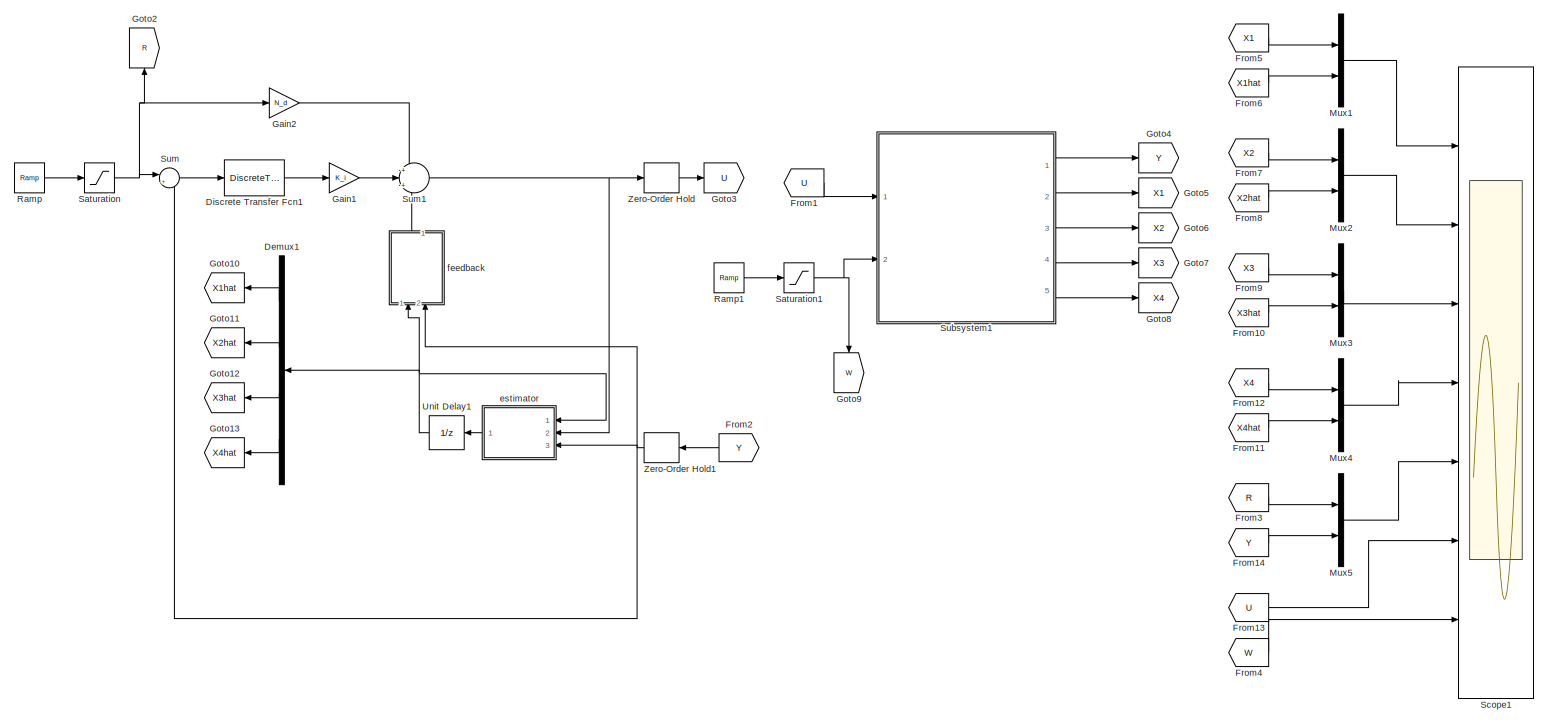
[diagram: root canvas - part 1/1, most of the canvas]
MODEL slx_0fdbdd9637d8
KIND model
CONFIG AbsTol = auto
CONFIG EnableMultiTasking = on
CONFIG FixedStep = auto
CONFIG MaxStep = auto
CONFIG MinStep = auto
CONFIG RelTol = 1e-3
CONFIG SampleTimeConstraint = Unconstrained
CONFIG Solver = VariableStepAuto
CONFIG SolverName = VariableStepAuto
CONFIG StartTime = 0.0
CONFIG StopTime = 60
BLOCK [Demux] Demux1
  DisplayOption = bar
  Ports = [1, 4]
BLOCK [DiscreteTransferFcn] Discrete Transfer Fcn1
  Denominator = [1 -1]
  InputPortMap = u0
  Ports = [1, 1]
  SampleTime = T_sample
BLOCK [From] From1
  GotoTag = U
BLOCK [From] From10
  GotoTag = X3hat
BLOCK [From] From11
  GotoTag = X4hat
BLOCK [From] From12
  GotoTag = X4
BLOCK [From] From13
  GotoTag = U
BLOCK [From] From14
  GotoTag = Y
BLOCK [From] From2
  GotoTag = Y
BLOCK [From] From3
  GotoTag = R
BLOCK [From] From4
  GotoTag = W
BLOCK [From] From5
  GotoTag = X1
BLOCK [From] From6
  GotoTag = X1hat
BLOCK [From] From7
  GotoTag = X2
BLOCK [From] From8
  GotoTag = X2hat
BLOCK [From] From9
  GotoTag = X3
BLOCK [Gain] Gain1
  Gain = K_i
  OutDataTypeStr = Inherit: Inherit via internal rule
  ParamDataTypeStr = Inherit: Inherit via internal rule
  SaturateOnIntegerOverflow = off
BLOCK [Gain] Gain2
  Gain = N_d
  OutDataTypeStr = Inherit: Inherit via internal rule
  ParamDataTypeStr = Inherit: Inherit via internal rule
  SaturateOnIntegerOverflow = off
BLOCK [Goto] Goto10
  GotoTag = X1hat
BLOCK [Goto] Goto11
  GotoTag = X2hat
BLOCK [Goto] Goto12
  GotoTag = X3hat
BLOCK [Goto] Goto13
  GotoTag = X4hat
BLOCK [Goto] Goto2
  GotoTag = R
BLOCK [Goto] Goto3
  GotoTag = U
BLOCK [Goto] Goto4
  GotoTag = Y
BLOCK [Goto] Goto5
  GotoTag = X1
BLOCK [Goto] Goto6
  GotoTag = X2
BLOCK [Goto] Goto7
  GotoTag = X3
BLOCK [Goto] Goto8
  GotoTag = X4
BLOCK [Goto] Goto9
  GotoTag = W
BLOCK [Mux] Mux1
  DisplayOption = bar
  Inputs = 2
  Ports = [2, 1]
BLOCK [Mux] Mux2
  DisplayOption = bar
  Inputs = 2
  Ports = [2, 1]
BLOCK [Mux] Mux3
  DisplayOption = bar
  Inputs = 2
  Ports = [2, 1]
BLOCK [Mux] Mux4
  DisplayOption = bar
  Inputs = 2
  Ports = [2, 1]
BLOCK [Mux] Mux5
  DisplayOption = bar
  Inputs = 2
  Ports = [2, 1]
BLOCK [Reference] Ramp  REF=simulink/Sources/Ramp
  Ports = [0, 1]
  SourceBlock = simulink/Sources/Ramp
  SourceProductBaseCode = SL
  SourceProductName = Simulink
  SourceType = Ramp
BLOCK [Reference] Ramp1  REF=simulink/Sources/Ramp
  Ports = [0, 1]
  SourceBlock = simulink/Sources/Ramp
  SourceProductBaseCode = SL
  SourceProductName = Simulink
  SourceType = Ramp
BLOCK [Saturate] Saturation
  InputPortMap = u0
  Ports = [1, 1]
  UpperLimit = 0.25
BLOCK [Saturate] Saturation1
  InputPortMap = u0
  Ports = [1, 1]
  UpperLimit = 0.1
BLOCK [Scope] Scope1
  NumInputPorts = 7
  Ports = [7]
  ScopeSpecificationString = Simulink.scopes.TimeScopeBlockCfg('CurrentConfiguration', extmgr.ConfigurationSet(extmgr.Configuration('Core','General UI',true),extmgr.Configuration('Core','Source UI',true),extmgr.Configuration('Sources','WiredSimulink',true,'DataLoggingVariableName','ScopeData1'),extmgr.Configuration('Visuals','Time Domain',true,'SerializedDisplays',{struct('MinYLimReal','-0.25877','MaxYLimReal','0.52974','YLab...<+6436ch>
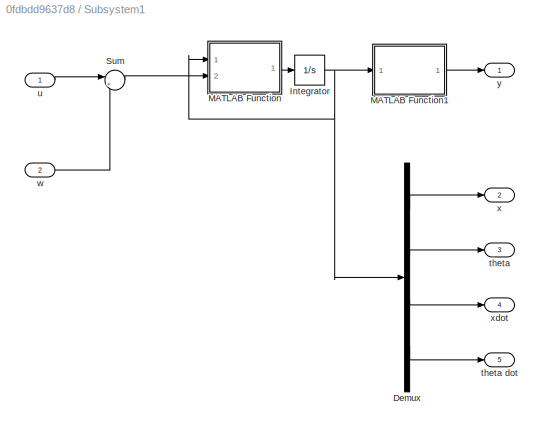
BLOCK [SubSystem] Subsystem1
  Ports = [2, 5]
  RequestExecContextInheritance = off
  Variant = off
BLOCK [Demux] Subsystem1/Demux
  DisplayOption = bar
  Ports = [1, 4]
BLOCK [Integrator] Subsystem1/Integrator
  InitialCondition = [0.0  0.01  0.0  0.0]
  Ports = [1, 1]
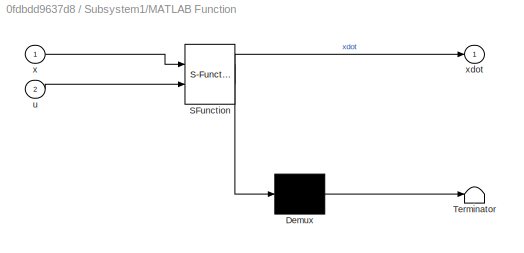
BLOCK [SubSystem] Subsystem1/MATLAB Function
  ErrorFcn = Stateflow.Translate.translate
  PermitHierarchicalResolution = ExplicitOnly
  Ports = [2, 1]
  RequestExecContextInheritance = off
  SFBlockType = MATLAB Function
  TreatAsAtomicUnit = on
  Variant = off
BLOCK [Demux] Subsystem1/MATLAB Function/ Demux 
  Outputs = 1
  Ports = [1, 1]
BLOCK [S-Function] Subsystem1/MATLAB Function/ SFunction 
  EnableBusSupport = on
  FunctionName = sf_sfun
  PortCounts = [2 2]
  Ports = [2, 2]
  SFcnIsStateOwnerBlock = off
  SFunctionDeploymentMode = off
  Tag = Stateflow S-Function File7 4
BLOCK [Terminator] Subsystem1/MATLAB Function/ Terminator 
BLOCK [Inport] Subsystem1/MATLAB Function/u
  IconDisplay = Port number
  Port = 2
BLOCK [Inport] Subsystem1/MATLAB Function/x
  IconDisplay = Port number
BLOCK [Outport] Subsystem1/MATLAB Function/xdot
  IconDisplay = Port number
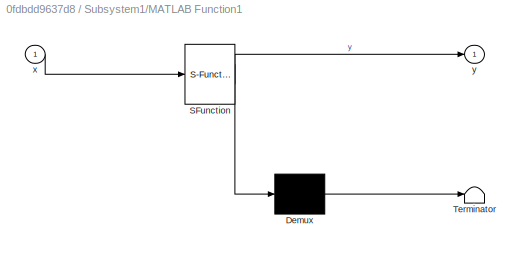
BLOCK [SubSystem] Subsystem1/MATLAB Function1
  ErrorFcn = Stateflow.Translate.translate
  PermitHierarchicalResolution = ExplicitOnly
  Ports = [1, 1]
  RequestExecContextInheritance = off
  SFBlockType = MATLAB Function
  TreatAsAtomicUnit = on
  Variant = off
BLOCK [Demux] Subsystem1/MATLAB Function1/ Demux 
  Outputs = 1
  Ports = [1, 1]
BLOCK [S-Function] Subsystem1/MATLAB Function1/ SFunction 
  EnableBusSupport = on
  FunctionName = sf_sfun
  Parameters = C
  PortCounts = [1 2]
  Ports = [1, 2]
  SFcnIsStateOwnerBlock = off
  SFunctionDeploymentMode = off
  Tag = Stateflow S-Function File7 5
BLOCK [Terminator] Subsystem1/MATLAB Function1/ Terminator 
BLOCK [Inport] Subsystem1/MATLAB Function1/x
  IconDisplay = Port number
BLOCK [Outport] Subsystem1/MATLAB Function1/y
  IconDisplay = Port number
BLOCK [Sum] Subsystem1/Sum
  IconShape = round
  InputSameDT = off
  Inputs = |+-
  OutDataTypeStr = Inherit: Inherit via internal rule
  Ports = [2, 1]
  SaturateOnIntegerOverflow = off
BLOCK [Outport] Subsystem1/theta
  IconDisplay = Port number
  Port = 3
BLOCK [Outport] Subsystem1/theta dot
  IconDisplay = Port number
  Port = 5
BLOCK [Inport] Subsystem1/u
  IconDisplay = Port number
BLOCK [Inport] Subsystem1/w 
  IconDisplay = Port number
  Port = 2
BLOCK [Outport] Subsystem1/x
  IconDisplay = Port number
  Port = 2
BLOCK [Outport] Subsystem1/xdot
  IconDisplay = Port number
  Port = 4
BLOCK [Outport] Subsystem1/y
  IconDisplay = Port number
BLOCK [Sum] Sum
  IconShape = round
  InputSameDT = off
  Inputs = |+-
  OutDataTypeStr = Inherit: Inherit via internal rule
  Ports = [2, 1]
  SaturateOnIntegerOverflow = off
BLOCK [Sum] Sum1
  IconShape = round
  InputSameDT = off
  Inputs = +|+|+
  OutDataTypeStr = Inherit: Inherit via internal rule
  Ports = [3, 1]
  SaturateOnIntegerOverflow = off
BLOCK [UnitDelay] Unit Delay1
  InitialCondition = [0 0 0 0]
  InputProcessing = Elements as channels (sample based)
  SampleTime = T_sample
BLOCK [ZeroOrderHold] Zero-Order Hold
  SampleTime = T_sample
BLOCK [ZeroOrderHold] Zero-Order Hold1
  SampleTime = T_sample
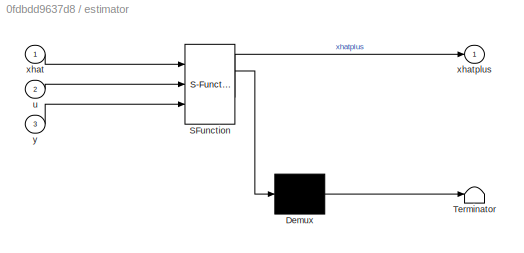
BLOCK [SubSystem] estimator
  ErrorFcn = Stateflow.Translate.translate
  PermitHierarchicalResolution = ExplicitOnly
  Ports = [3, 1]
  RequestExecContextInheritance = off
  SFBlockType = MATLAB Function
  TreatAsAtomicUnit = on
  Variant = off
BLOCK [Demux] estimator/ Demux 
  Outputs = 1
  Ports = [1, 1]
BLOCK [S-Function] estimator/ SFunction 
  EnableBusSupport = on
  FunctionName = sf_sfun
  Parameters = A_d,B_d,C_d,L_d
  PortCounts = [3 2]
  Ports = [3, 2]
  SFcnIsStateOwnerBlock = off
  SFunctionDeploymentMode = off
  Tag = Stateflow S-Function File7 3
BLOCK [Terminator] estimator/ Terminator 
BLOCK [Inport] estimator/u
  IconDisplay = Port number
  Port = 2
BLOCK [Inport] estimator/xhat
  IconDisplay = Port number
BLOCK [Outport] estimator/xhatplus
  IconDisplay = Port number
BLOCK [Inport] estimator/y
  IconDisplay = Port number
  Port = 3
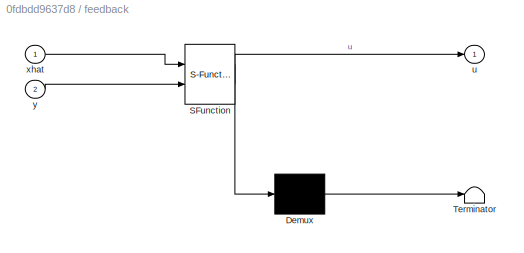
BLOCK [SubSystem] feedback
  ErrorFcn = Stateflow.Translate.translate
  PermitHierarchicalResolution = ExplicitOnly
  Ports = [2, 1]
  RequestExecContextInheritance = off
  SFBlockType = MATLAB Function
  TreatAsAtomicUnit = on
  Variant = off
BLOCK [Demux] feedback/ Demux 
  Outputs = 1
  Ports = [1, 1]
BLOCK [S-Function] feedback/ SFunction 
  EnableBusSupport = on
  FunctionName = sf_sfun
  Parameters = K
  PortCounts = [2 2]
  Ports = [2, 2]
  SFcnIsStateOwnerBlock = off
  SFunctionDeploymentMode = off
  Tag = Stateflow S-Function File7 1
BLOCK [Terminator] feedback/ Terminator 
BLOCK [Outport] feedback/u
  IconDisplay = Port number
BLOCK [Inport] feedback/xhat
  IconDisplay = Port number
BLOCK [Inport] feedback/y
  IconDisplay = Port number
  Port = 2
LINE Demux1:1 -> Goto10:1
LINE Demux1:2 -> Goto11:1
LINE Demux1:3 -> Goto12:1
LINE Demux1:4 -> Goto13:1
LINE Discrete Transfer Fcn1:1 -> Gain1:1
LINE From10:1 -> Mux3:2
LINE From11:1 -> Mux4:2
LINE From12:1 -> Mux4:1
LINE From13:1 -> Scope1:6
LINE From14:1 -> Mux5:2
LINE From1:1 -> Subsystem1:1
LINE From2:1 -> Zero-Order Hold1:1
LINE From3:1 -> Mux5:1
LINE From4:1 -> Scope1:7
LINE From5:1 -> Mux1:1
LINE From6:1 -> Mux1:2
LINE From7:1 -> Mux2:1
LINE From8:1 -> Mux2:2
LINE From9:1 -> Mux3:1
LINE Gain1:1 -> Sum1:2
LINE Gain2:1 -> Sum1:1
LINE Mux1:1 -> Scope1:1
LINE Mux2:1 -> Scope1:2
LINE Mux3:1 -> Scope1:3
LINE Mux4:1 -> Scope1:4
LINE Mux5:1 -> Scope1:5
LINE Ramp1:1 -> Saturation1:1
LINE Ramp:1 -> Saturation:1
NET Saturation1:1 -> Goto9:1, Subsystem1:2
NET Saturation:1 -> Gain2:1, Goto2:1, Sum:1
LINE Subsystem1/Demux:1 -> Subsystem1/x:1
LINE Subsystem1/Demux:2 -> Subsystem1/theta:1
LINE Subsystem1/Demux:3 -> Subsystem1/xdot:1
LINE Subsystem1/Demux:4 -> Subsystem1/theta dot:1
NET Subsystem1/Integrator:1 -> Subsystem1/Demux:1, Subsystem1/MATLAB Function1:1, Subsystem1/MATLAB Function:1
LINE Subsystem1/MATLAB Function1:1 -> Subsystem1/y:1
LINE Subsystem1/MATLAB Function:1 -> Subsystem1/Integrator:1
LINE Subsystem1/Sum:1 -> Subsystem1/MATLAB Function:2
LINE Subsystem1/u:1 -> Subsystem1/Sum:1
LINE Subsystem1/w :1 -> Subsystem1/Sum:2
LINE Subsystem1:1 -> Goto4:1
LINE Subsystem1:2 -> Goto5:1
LINE Subsystem1:3 -> Goto6:1
LINE Subsystem1:4 -> Goto7:1
LINE Subsystem1:5 -> Goto8:1
NET Sum1:1 -> Zero-Order Hold:1, estimator:2
LINE Sum:1 -> Discrete Transfer Fcn1:1
NET Unit Delay1:1 -> Demux1:1, estimator:1, feedback:1
NET Zero-Order Hold1:1 -> Sum:2, estimator:3, feedback:2
LINE Zero-Order Hold:1 -> Goto3:1
LINE estimator:1 -> Unit Delay1:1
LINE feedback:1 -> Sum1:3
note: NET lines group one-source signal fan-out (src -> all destinations, sorted); 1:1 wires keep LINE
CHART feedback states=1 transitions=1
  STATE_LABEL 'eML_blk_kernel()'
  STATE_LABEL 'SCRIPT:\nfunction u=feedback(K,xhat,y)\n\nu=-(K(1)*y + K(2)*xhat(2) + K(3)*xhat(3) + K(4)*xhat(4));\n\nend'
CHART estimator states=1 transitions=1
  STATE_LABEL 'eML_blk_kernel()'
  STATE_LABEL 'SCRIPT:\nfunction xhatplus=estimator(A_d, B_d, C_d, xhat, u, L_d,y)\n\n    xhatplus= A_d*xhat + B_d*u + L_d*(y - C_d*xhat);\nend'
CHART Subsystem1/MATLAB Function states=1 transitions=1
  STATE_LABEL 'eML_blk_kernel()'
  STATE_LABEL 'SCRIPT:\nfunction xdot=invp_dyn(x,u)\n\n% Define the non linear dynamic model for inverted pendulum\n% in xdot = f(x,y;t) form\n\n% Parameters of the model\n\nm1 = 1.0 ;\nm2 = 1.0 ;\nl = 10.0 ;\ng = 10.0 ;\n% State Vector: [x(1) x(2) x(3) x(4) ] = [x theta xdot thetadot ]\n\nJ = [ (m1+m2) 0.5*m2*l*cos(x(2))\n0.5*m2*l*cos(x(2)) (1.0/3.0)*m2*(l^2) ] ;\n\ndetJ = J(1,1)*J(2,2) - J(1,2)*J(2,1) ;\n\ninvJ = [ J(2,2)/detJ -...<+232ch>'
CHART Subsystem1/MATLAB Function1 states=1 transitions=1
  STATE_LABEL 'eML_blk_kernel()'
  STATE_LABEL 'SCRIPT:\nfunction y = output(C,x)\n\n    y=C*x;\n    \nend'
